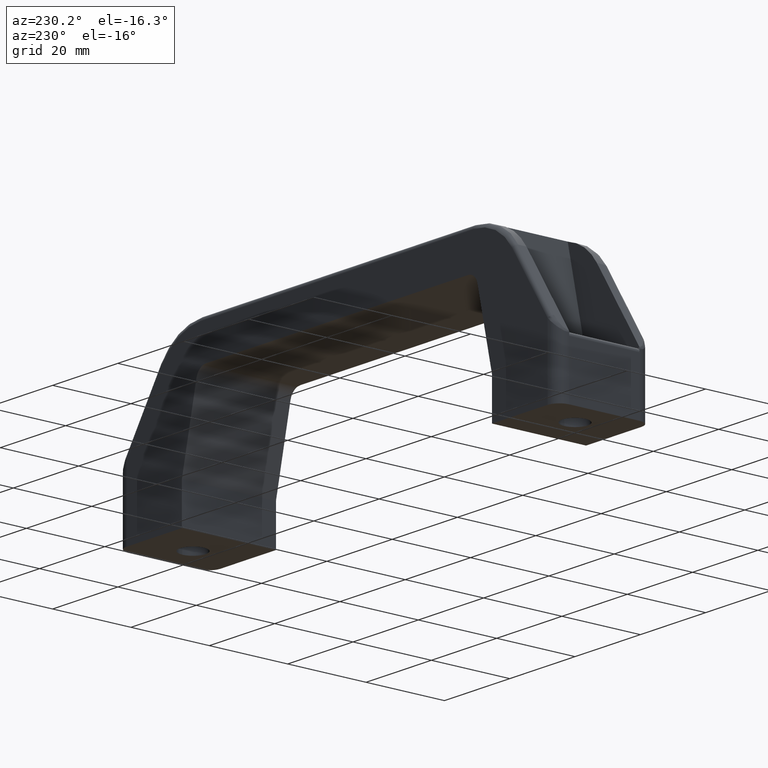
[diagram: clean part render]
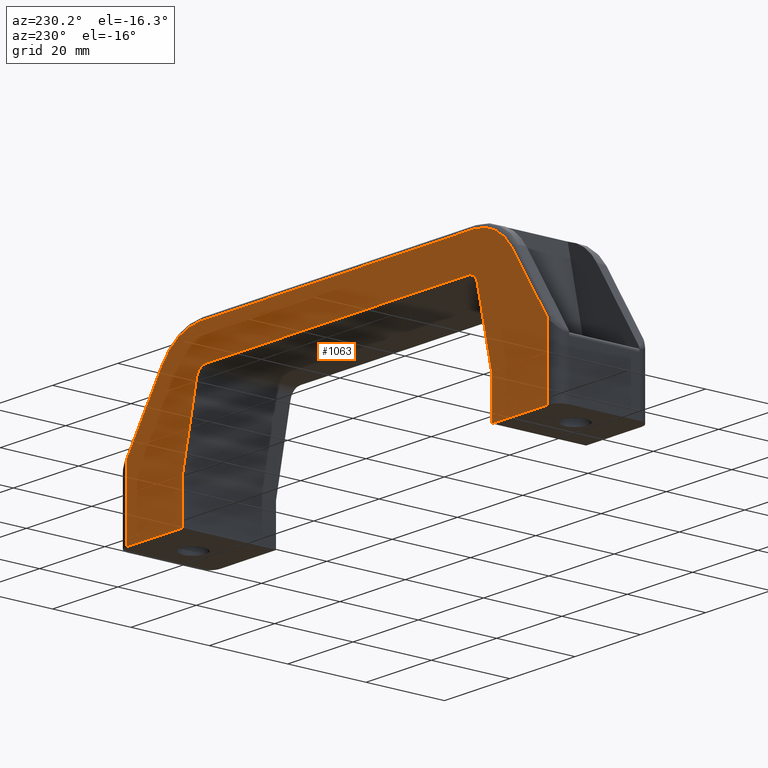
[diagram: same view with one face highlighted and labeled with its STEP entity id]
A machine part, auxiliary view. The second image highlights one B-rep face of the part: STEP entity #1063.
In plain terms, the highlighted planar face has unit normal (0, -1, 0).
Its self-contained STEP definition (entity closure, byte-faithful):
#7=CARTESIAN_POINT('',(10.999999999955890,11.999999999952220,1.110223E-015));
#8=VERTEX_POINT('',#7);
#9=CARTESIAN_POINT('',(10.999999999955890,11.999999999952220,9.999999999960787));
#10=VERTEX_POINT('',#9);
#11=CARTESIAN_POINT('',(10.999999999955890,11.999999999952220,1.776357E-015));
#12=DIRECTION('',(0.0,0.0,1.0));
#13=VECTOR('',#12,9.999999999960785);
#14=LINE('',#11,#13);
#15=EDGE_CURVE('',#8,#10,#14,.T.);
#47=CARTESIAN_POINT('',(15.469287116022713,11.999999999952221,29.664863310648421));
#48=VERTEX_POINT('',#47);
#49=CARTESIAN_POINT('',(10.999999999955893,11.999999999952220,9.999999999960789));
#50=DIRECTION('',(0.221621103589036,8.808523E-017,0.975132855791444));
#51=VECTOR('',#50,20.166342661818216);
#52=LINE('',#49,#51);
#53=EDGE_CURVE('',#10,#48,#52,.T.);
#78=CARTESIAN_POINT('',(18.394685683385205,11.999999999952221,31.999999999872259));
#79=VERTEX_POINT('',#78);
#80=CARTESIAN_POINT('',(18.394685683385291,11.999999999952221,28.999999999884416));
#81=DIRECTION('',(-2.418429E-029,1.0,-6.123234E-017));
#82=DIRECTION('',(-2.723747E-014,6.123234E-017,1.0));
#83=AXIS2_PLACEMENT_3D('',#80,#81,#82);
#84=CIRCLE('',#83,2.999999999987850);
#85=EDGE_CURVE('',#48,#79,#84,.T.);
#111=CARTESIAN_POINT('',(98.605314316145780,11.999999999952221,31.999999999872259));
#112=VERTEX_POINT('',#111);
#113=CARTESIAN_POINT('',(18.394685683385205,11.999999999952221,31.999999999872259));
#114=DIRECTION('',(1.0,0.0,0.0));
#115=VECTOR('',#114,80.210628632760574);
#116=LINE('',#113,#115);
#117=EDGE_CURVE('',#79,#112,#116,.T.);
#142=CARTESIAN_POINT('',(101.530712883509420,11.999999999952221,29.664863310647810));
#143=VERTEX_POINT('',#142);
#144=CARTESIAN_POINT('',(98.605314316145808,11.999999999952225,28.999999999883251));
#145=DIRECTION('',(1.540744E-033,1.000000000000000,-6.123234E-017));
#146=DIRECTION('',(0.975132855791453,1.357038E-017,0.221621103589000));
#147=AXIS2_PLACEMENT_3D('',#144,#145,#146);
#148=CIRCLE('',#147,2.999999999989020);
#149=EDGE_CURVE('',#112,#143,#148,.T.);
#175=CARTESIAN_POINT('',(105.999999999575720,11.999999999952220,9.999999999959877));
#176=VERTEX_POINT('',#175);
#177=CARTESIAN_POINT('',(101.530712883509420,11.999999999952221,29.664863310647810));
#178=DIRECTION('',(0.221621103589001,-8.808523E-017,-0.975132855791452));
#179=VECTOR('',#178,20.166342661818554);
#180=LINE('',#177,#179);
#181=EDGE_CURVE('',#143,#176,#180,.T.);
#206=CARTESIAN_POINT('',(105.999999999575720,11.999999999952220,-1.054712E-013));
#207=VERTEX_POINT('',#206);
#208=CARTESIAN_POINT('',(105.999999999575720,11.999999999952220,9.999999999959877));
#209=DIRECTION('',(0.0,0.0,-1.0));
#210=VECTOR('',#209,9.999999999959982);
#211=LINE('',#208,#210);
#212=EDGE_CURVE('',#176,#207,#211,.T.);
#445=CARTESIAN_POINT('',(122.999999999495710,11.999999999952220,-1.108003E-013));
#446=VERTEX_POINT('',#445);
#447=CARTESIAN_POINT('',(105.999999999575720,11.999999999952220,-1.054712E-013));
#448=DIRECTION('',(1.0,0.0,0.0));
#449=VECTOR('',#448,16.999999999919993);
#450=LINE('',#447,#449);
#451=EDGE_CURVE('',#207,#446,#450,.T.);
#472=CARTESIAN_POINT('',(-5.999999999964075,11.999999999952220,-2.442491E-015));
#473=VERTEX_POINT('',#472);
#483=CARTESIAN_POINT('',(-5.999999999964075,11.999999999952220,-1.598721E-015));
#484=DIRECTION('',(1.0,0.0,0.0));
#485=VECTOR('',#484,16.999999999919964);
#486=LINE('',#483,#485);
#487=EDGE_CURVE('',#473,#8,#486,.T.);
#967=CARTESIAN_POINT('',(-5.999999999964075,11.999999999952221,17.789982795002430));
#968=VERTEX_POINT('',#967);
#989=CARTESIAN_POINT('',(-5.999999999964075,11.999999999952221,17.789982795002430));
#990=DIRECTION('',(0.0,0.0,-1.0));
#991=VECTOR('',#990,17.789982795002430);
#992=LINE('',#989,#991);
#993=EDGE_CURVE('',#968,#473,#992,.T.);
#998=CARTESIAN_POINT('',(-22.500004724710891,11.999999999952220,-4.200004724807495));
#999=DIRECTION('',(0.0,-1.0,0.0));
#1000=DIRECTION('',(1.0,0.0,0.0));
#1001=AXIS2_PLACEMENT_3D('',#998,#999,#1000);
#1002=PLANE('',#1001);
#1003=ORIENTED_EDGE('',*,*,#487,.F.);
#1004=ORIENTED_EDGE('',*,*,#993,.F.);
#1005=CARTESIAN_POINT('',(4.904803236191327,11.999999999952221,34.614536359352186));
#1006=VERTEX_POINT('',#1005);
#1007=CARTESIAN_POINT('',(4.904803236191299,11.999999999952221,34.614536359352194));
#1008=DIRECTION('',(-0.543895454249665,-8.859879E-017,-0.839152986556415));
#1009=VECTOR('',#1008,20.049447280634425);
#1010=LINE('',#1007,#1009);
#1011=EDGE_CURVE('',#1006,#968,#1010,.T.);
#1012=ORIENTED_EDGE('',*,*,#1011,.F.);
#1013=CARTESIAN_POINT('',(16.652945047932462,11.999999999952221,40.999999999832092));
#1014=VERTEX_POINT('',#1013);
#1015=CARTESIAN_POINT('',(16.652945047935535,11.999999999952221,26.999999999886416));
#1016=DIRECTION('',(0.0,-1.0,6.123234E-017));
#1017=DIRECTION('',(-0.839152986556414,3.330399E-017,0.543895454249666));
#1018=AXIS2_PLACEMENT_3D('',#1015,#1016,#1017);
#1019=CIRCLE('',#1018,13.999999999945679);
#1020=EDGE_CURVE('',#1014,#1006,#1019,.T.);
#1021=ORIENTED_EDGE('',*,*,#1020,.F.);
#1022=CARTESIAN_POINT('',(100.347054951604560,11.999999999952221,40.999999999832085));
#1023=VERTEX_POINT('',#1022);
#1024=CARTESIAN_POINT('',(100.347054951604560,11.999999999952221,40.999999999832092));
#1025=DIRECTION('',(-1.0,0.0,0.0));
#1026=VECTOR('',#1025,83.694109903672100);
#1027=LINE('',#1024,#1026);
#1028=EDGE_CURVE('',#1023,#1014,#1027,.T.);
#1029=ORIENTED_EDGE('',*,*,#1028,.F.);
#1030=CARTESIAN_POINT('',(112.095196763344030,11.999999999952221,34.614536359354865));
#1031=VERTEX_POINT('',#1030);
#1032=CARTESIAN_POINT('',(100.347054951604510,11.999999999952221,26.999999999891841));
#1033=DIRECTION('',(-7.703720E-034,-1.0,6.123234E-017));
#1034=DIRECTION('',(3.789561E-015,6.123234E-017,1.0));
#1035=AXIS2_PLACEMENT_3D('',#1032,#1033,#1034);
#1036=CIRCLE('',#1035,13.999999999940247);
#1037=EDGE_CURVE('',#1031,#1023,#1036,.T.);
#1038=ORIENTED_EDGE('',*,*,#1037,.F.);
#1039=CARTESIAN_POINT('',(122.999999999495670,11.999999999952218,17.789982795003773));
#1040=VERTEX_POINT('',#1039);
#1041=CARTESIAN_POINT('',(122.999999999495690,11.999999999952221,17.789982795003745));
#1042=DIRECTION('',(-0.543895454249503,8.859879E-017,0.839152986556520));
#1043=VECTOR('',#1042,20.049447280633540);
#1044=LINE('',#1041,#1043);
#1045=EDGE_CURVE('',#1040,#1031,#1044,.T.);
#1046=ORIENTED_EDGE('',*,*,#1045,.F.);
#1047=CARTESIAN_POINT('',(122.999999999495710,11.999999999952220,-1.108003E-013));
#1048=DIRECTION('',(0.0,0.0,1.0));
#1049=VECTOR('',#1048,17.789982795003887);
#1050=LINE('',#1047,#1049);
#1051=EDGE_CURVE('',#446,#1040,#1050,.T.);
#1052=ORIENTED_EDGE('',*,*,#1051,.F.);
#1053=ORIENTED_EDGE('',*,*,#451,.F.);
#1054=ORIENTED_EDGE('',*,*,#212,.F.);
#1055=ORIENTED_EDGE('',*,*,#181,.F.);
#1056=ORIENTED_EDGE('',*,*,#149,.F.);
#1057=ORIENTED_EDGE('',*,*,#117,.F.);
#1058=ORIENTED_EDGE('',*,*,#85,.F.);
#1059=ORIENTED_EDGE('',*,*,#53,.F.);
#1060=ORIENTED_EDGE('',*,*,#15,.F.);
#1061=EDGE_LOOP('',(#1003,#1004,#1012,#1021,#1029,#1038,#1046,#1052,#1053,#1054,#1055,#1056,#1057,#1058,#1059,#1060));
#1062=FACE_OUTER_BOUND('',#1061,.T.);
#1063=ADVANCED_FACE('',(#1062),#1002,.F.);